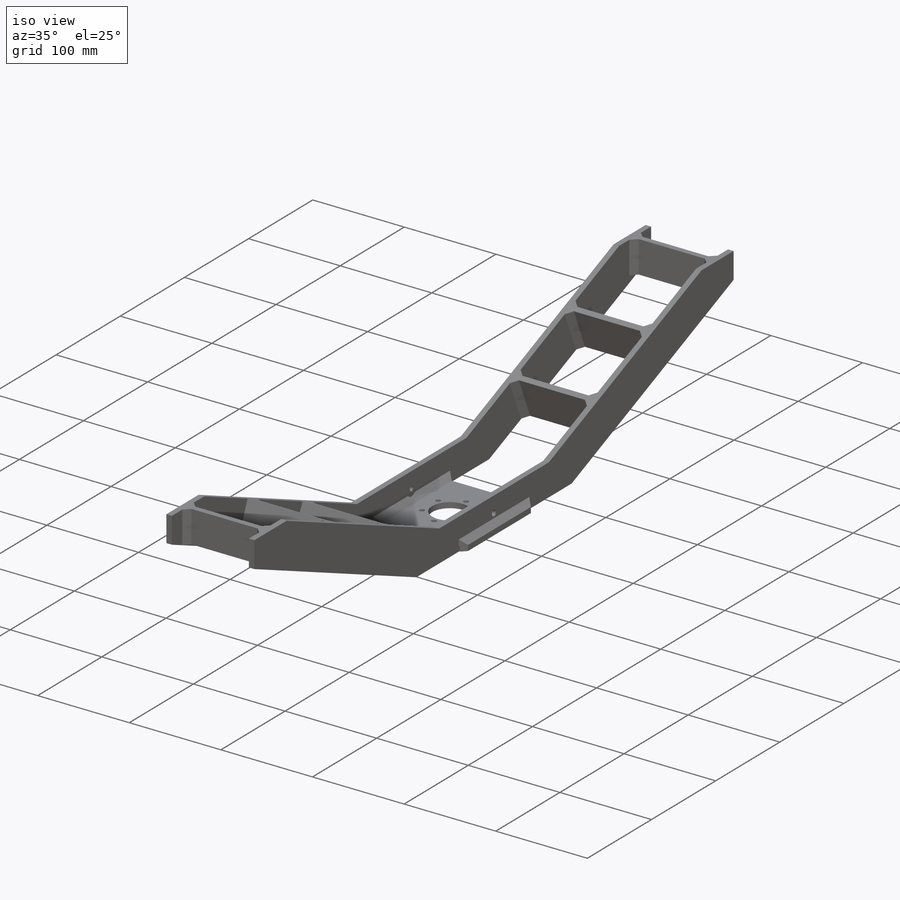
[diagram: iso view]
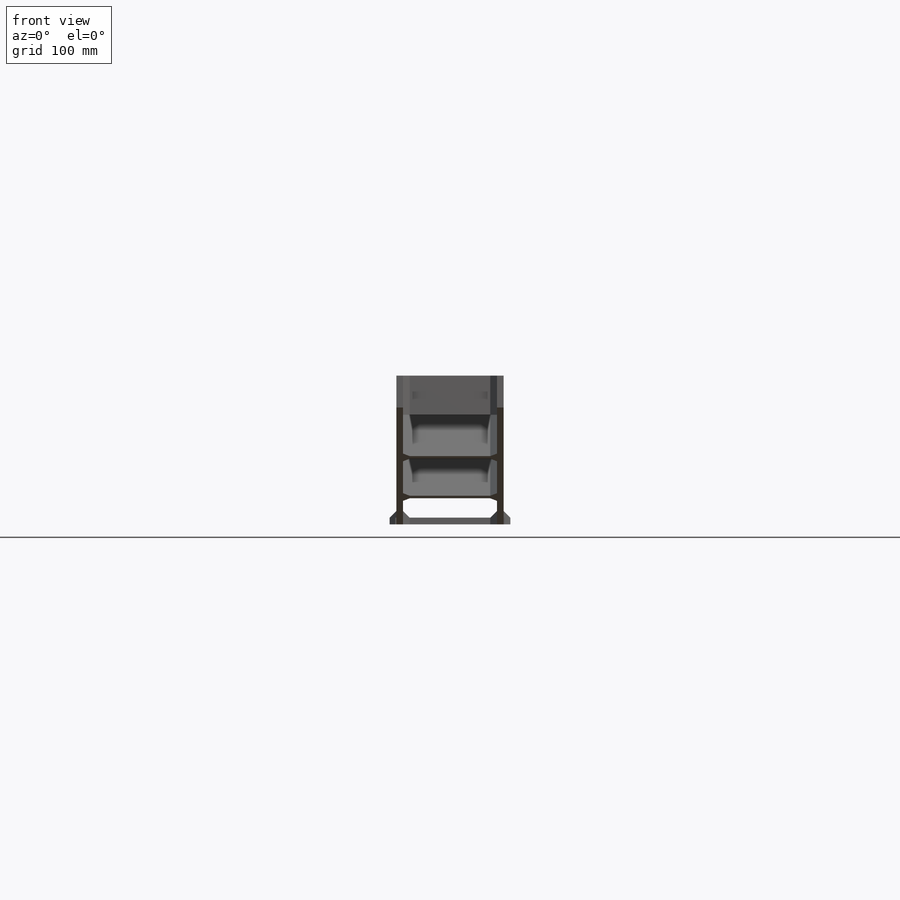
[diagram: front view]
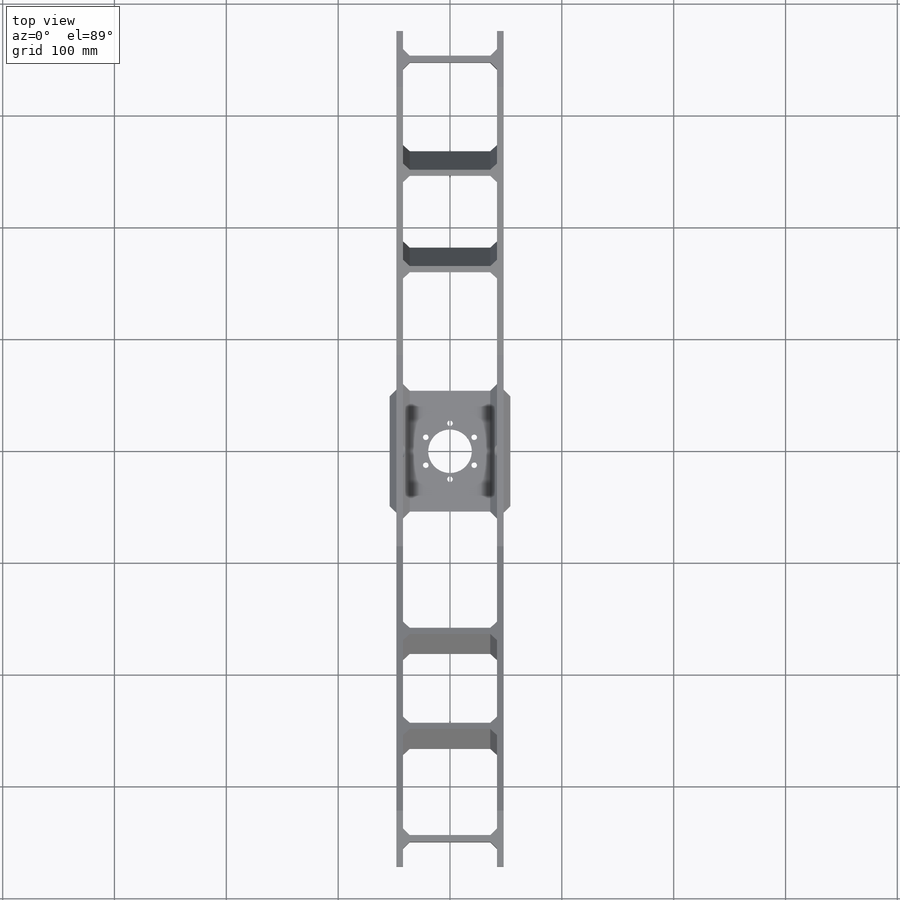
[diagram: top view]
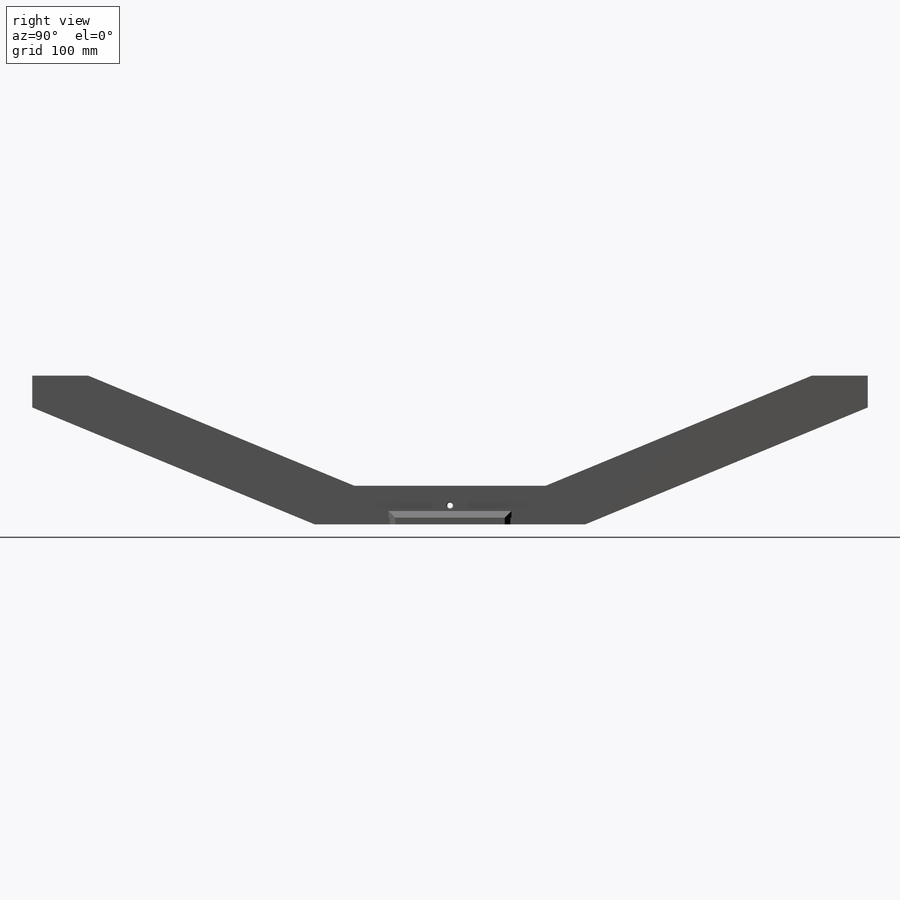
[diagram: right view]
SOLIDWORKS PART (.sldprt)
format: sldprt  version: not decoded by parser v0  size: 878,592 bytes
history: native  units: mm
features: extrude x15, sketch x11, thread x8, plane x3, hole x2, chamfer x2, move_body x2, material x1, mirror x1 + 7 further entries (+36 scaffold rows collapsed; 1 parser-record rows omitted)
feature tree (89):
  scaffold x36  (default folders/planes/origin — collapsed)
  material  " 09Г2С ГОСТ 4543-71"
  "Элемент списка вырезов2"
  "Элемент списка вырезов3"
  "Элемент списка вырезов4"
  plane  "Спереди"
  plane  "Сверху"
  plane  "Слева"
  "Начало координат"
  "PTricksFreeParameters"
  "PTricksEqu"
  "PTricksFreeParameters"
  sketch  "Эскиз1"  dims[D2=39.0mm D3=50.0mm D1=108.0mm]
  extrude  "Вытянуть1"  Depth=6mm
  hole  "Отверстие обработанное метчиком M6x1.01"  [1 undecoded]
  sketch  "Эскиз3"
  sketch  "Эскиз2"  dims[hole-wizard template sketch: 55 standard entries collapsed; hole parameters kept: c17.Глубина проходного сверла=6.0mm c17.Диаметр передней зенковки=6.5mm c17.D4=~3.666174mm c17.Угол передней зенковки=90.0deg]
  thread  "Отверстие резьбы1"  Diameter=6mm  [1 undecoded]
  thread  "Отверстие резьбы2"  Diameter=6mm  [1 undecoded]
  thread  "Отверстие резьбы3"  Diameter=6mm  [1 undecoded]
  thread  "Отверстие резьбы4"  Diameter=6mm  [1 undecoded]
  thread  "Отверстие резьбы5"  Diameter=6mm  [1 undecoded]
  thread  "Отверстие резьбы6"  Diameter=6mm  [1 undecoded]
  chamfer  "Фаска1"  Distance=5mm Angle=45deg
  sketch  "Эскиз4"  dims[c1.D1=28.5mm c1.D2=171.0mm c1.D3=50.0mm c1.D4=28.5mm c1.D5=373.5mm c1.D6=133.0mm c1.D7=70.0mm c2.D7=~22.482978deg c2.D8=70.0mm c3.D8=22.5deg c3.D9=~85.699964mm c4.D8=~45.454253mm c4.D9=~242.005076mm c4.D10=108.0mm]
  extrude  "Вытянуть2"  Depth=6mm
  move_body  "Тело-Переместить/Копировать1"
  extrude  "Скругленный шов2"  Depth=6mm
  sketch  "Эскиз5"  dims[c1.D1=697.0mm c2.D1=35.0mm c2.D5=6.0mm c2.D6=10.0mm c2.D7=5.0mm]
  sketch  "Эскиз6"  dims[D1=82.5mm D2=82.5mm D3=~92.577658mm]
  move_body  "Вытянуть-Тонкостенный2"
  chamfer  "Тело-Переместить/Копировать2"  [1 undecoded]
  mirror  "Зеркальное отражение1"
  parser-record x1  (decoder bookkeeping rows leaked as tree rows — omitted from the tree; the rows remain in map.json)
  extrude  "Скругленный шов3"  Depth=6mm
  extrude  "Скругленный шов4"  Depth=6mm
  extrude  "Скругленный шов5"  Depth=6mm
  extrude  "Скругленный шов6"  Depth=6mm
  extrude  "Скругленный шов7"  Depth=6mm
  extrude  "Скругленный шов8"  Depth=6mm
  extrude  "Скругленный шов9"  Depth=6mm
  extrude  "Скругленный шов10"  Depth=6mm
  extrude  "Скругленный шов11"  Depth=6mm
  extrude  "Скругленный шов12"  Depth=6mm
  extrude  "Скругленный шов13"  Depth=6mm
  extrude  "Скругленный шов14"  Depth=6mm
  sketch  "Эскиз7"  dims[c1.D2=14.0mm c1.D3=14.0mm c1.D1=17.0mm c2.D3=2.0mm]
  sketch  "Эскиз8"
  hole  "Отверстие обработанное метчиком M6x1.02"  [1 undecoded]
  sketch  "Трехмерный эскиз1"
  sketch  "Эскиз9"  dims[hole-wizard template sketch: 55 standard entries collapsed; hole parameters kept: c17.Глубина проходного сверла=6.0mm c17.Диаметр передней зенковки=6.5mm c17.D4=~3.666174mm c17.Угол передней зенковки=90.0deg]
  thread  "Отверстие резьбы7"  Diameter=6mm  [1 undecoded]
  thread  "Отверстие резьбы8"  Diameter=6mm  [1 undecoded]
  sketch  "Эскиз10"  dims[D1=~1.359898mm]
decode coverage: 32 of 41 modeling features carry decoded parameters; 7 rows unclassified (native names shown)
note: ~ marks probable driven/reference dimensions
note: 11 parameter values undecoded
summary: no parameter record found for 3 features
note: suppression state not decoded; provenance and decode notes live in map.json
